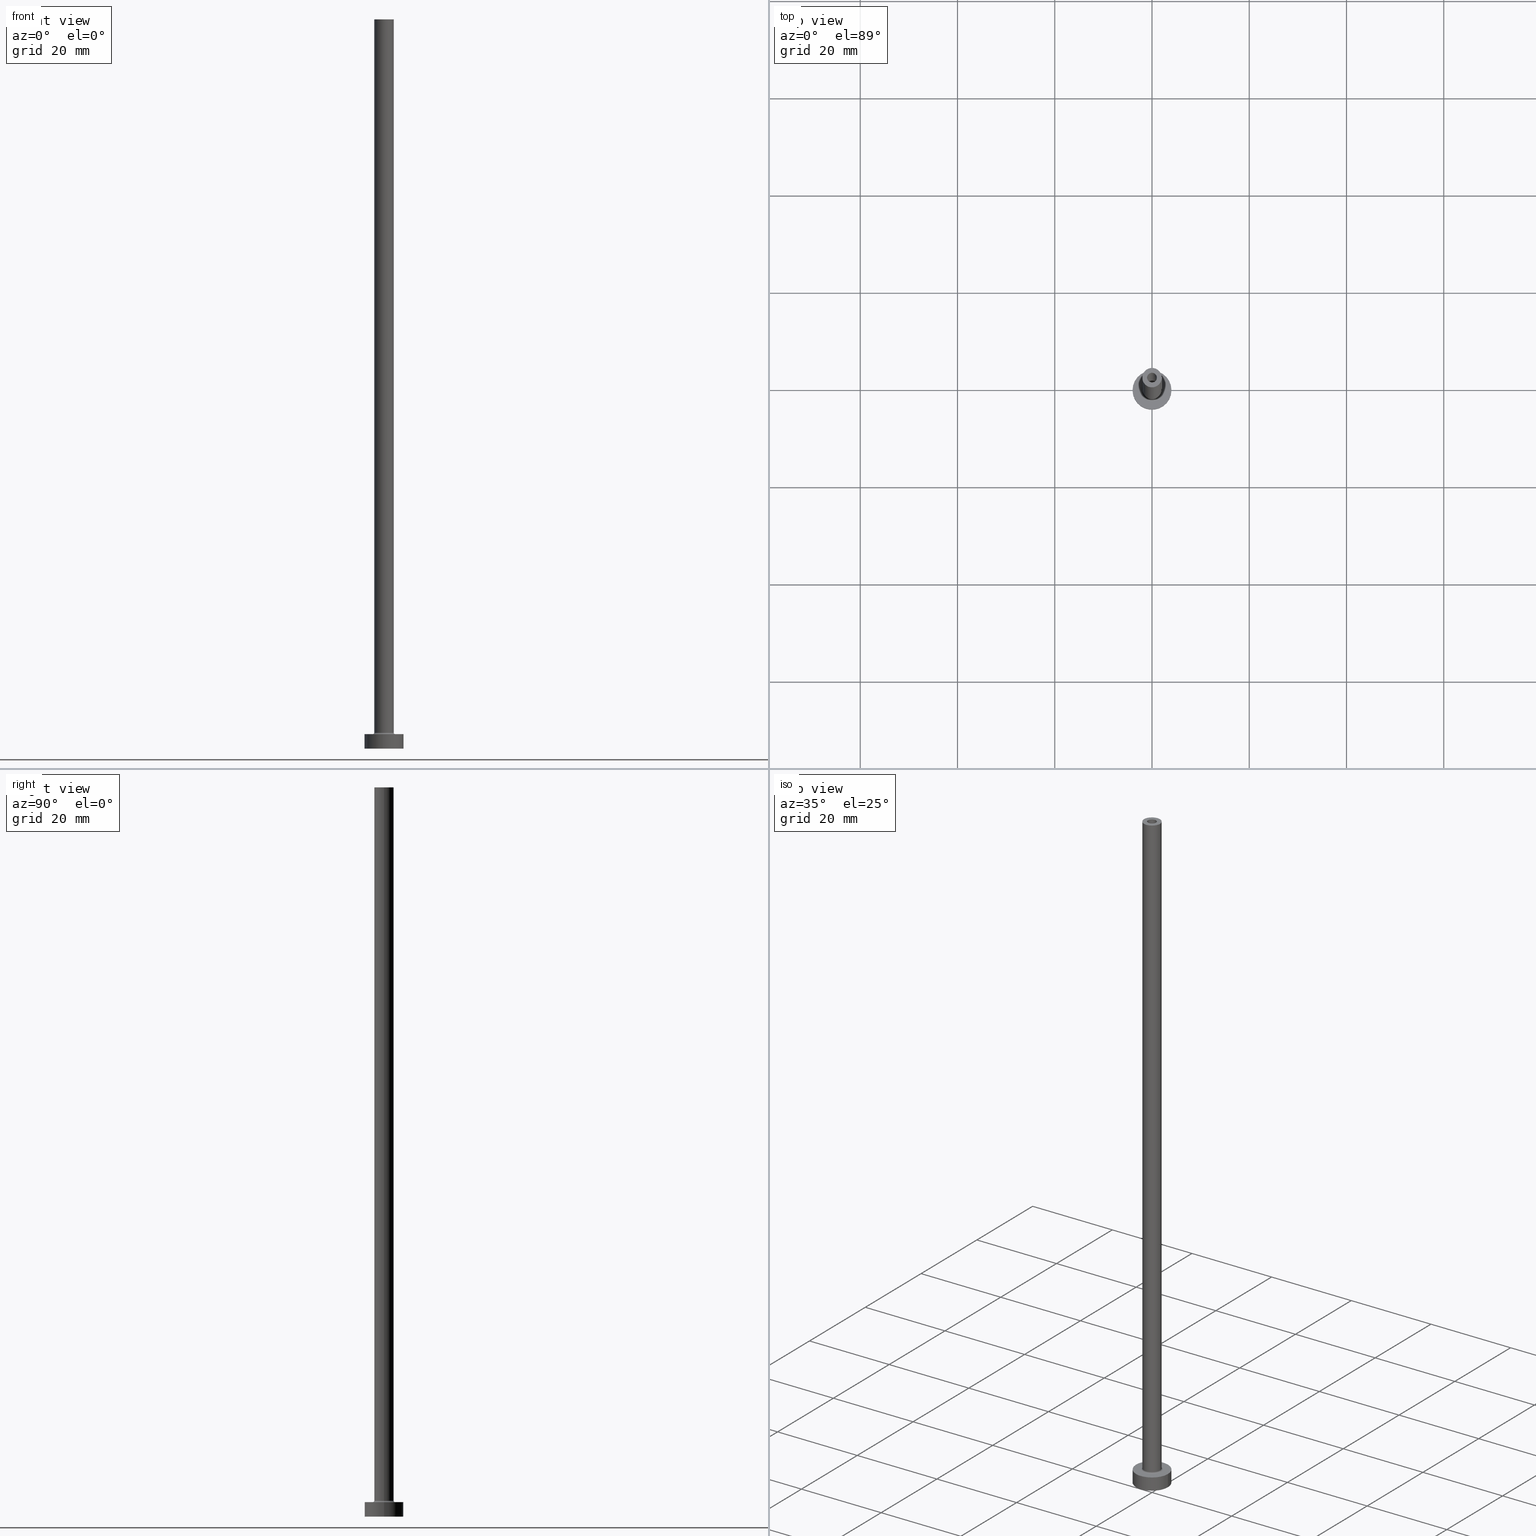
[diagram: canonical four-view strip — front | top / right | iso, engineering-drawing reading convention]
A machine part, canonical four-view strip (front | top / right | iso — engineering-drawing reading convention). The complete STEP part file that produces these views, byte-faithful:
ISO-10303-21;
HEADER;
FILE_DESCRIPTION (( 'STEP AP203' ),
    '1' );
FILE_NAME ('b69b.STEP',
    '2023-02-13T12:50:48',
    ( '' ),
    ( '' ),
    'SwSTEP 2.0',
    'SolidWorks 2019',
    '' );
FILE_SCHEMA (( 'CONFIG_CONTROL_DESIGN' ));
ENDSEC;

DATA;
#1 = ORIENTED_EDGE ( 'NONE', *, *, #355, .T. ) ;
#2 = VERTEX_POINT ( 'NONE', #311 ) ;
#3 = AXIS2_PLACEMENT_3D ( 'NONE', #230, #89, #235 ) ;
#4 = CC_DESIGN_APPROVAL ( #40, ( #170 ) ) ;
#5 = DIRECTION ( 'NONE',  ( 0.000000000000000000, 0.000000000000000000, 1.000000000000000000 ) ) ;
#6 = ORIENTED_EDGE ( 'NONE', *, *, #405, .T. ) ;
#7 = EDGE_CURVE ( 'NONE', #117, #353, #342, .T. ) ;
#8 = APPROVAL_STATUS ( 'not_yet_approved' ) ;
#9 = SHAPE_DEFINITION_REPRESENTATION ( #113, #159 ) ;
#10 = AXIS2_PLACEMENT_3D ( 'NONE', #76, #188, #14 ) ;
#11 = APPLICATION_PROTOCOL_DEFINITION ( 'international standard', 'config_control_design', 1994, #458 ) ;
#12 = COORDINATED_UNIVERSAL_TIME_OFFSET ( 1, 0, .AHEAD. ) ;
#13 = CIRCLE ( 'NONE', #359, 4.000000000000000000 ) ;
#14 = DIRECTION ( 'NONE',  ( 1.000000000000000000, 0.000000000000000000, 0.000000000000000000 ) ) ;
#15 = ADVANCED_FACE ( 'NONE', ( #376, #20 ), #100, .F. ) ;
#16 = CYLINDRICAL_SURFACE ( 'NONE', #206, 4.000000000000000000 ) ;
#17 = CARTESIAN_POINT ( 'NONE',  ( -4.000000000000000000, 0.000000000000000000, 0.000000000000000000 ) ) ;
#18 = FACE_OUTER_BOUND ( 'NONE', #168, .T. ) ;
#19 = DIRECTION ( 'NONE',  ( 1.000000000000000000, 0.000000000000000000, 0.000000000000000000 ) ) ;
#20 = FACE_OUTER_BOUND ( 'NONE', #277, .T. ) ;
#21 = CARTESIAN_POINT ( 'NONE',  ( 0.000000000000000000, 0.000000000000000000, 118.2526911934581051 ) ) ;
#22 = CC_DESIGN_DATE_AND_TIME_ASSIGNMENT ( #220, #368, ( #201 ) ) ;
#23 = CARTESIAN_POINT ( 'NONE',  ( 1.000000000000000000, 1.224646799147353207E-16, 150.0000000000000000 ) ) ;
#24 = DIRECTION ( 'NONE',  ( 0.000000000000000000, 0.000000000000000000, 1.000000000000000000 ) ) ;
#25 = FACE_OUTER_BOUND ( 'NONE', #412, .T. ) ;
#26 = FACE_OUTER_BOUND ( 'NONE', #267, .T. ) ;
#27 = DIRECTION ( 'NONE',  ( 0.000000000000000000, 0.000000000000000000, 1.000000000000000000 ) ) ;
#28 = DIRECTION ( 'NONE',  ( 1.000000000000000000, 0.000000000000000000, 0.000000000000000000 ) ) ;
#29 = VECTOR ( 'NONE', #341, 1000.000000000000000 ) ;
#30 = ORIENTED_EDGE ( 'NONE', *, *, #367, .T. ) ;
#31 = ORIENTED_EDGE ( 'NONE', *, *, #299, .T. ) ;
#32 = DIRECTION ( 'NONE',  ( -1.000000000000000000, 0.000000000000000000, 0.000000000000000000 ) ) ;
#33 = ORIENTED_EDGE ( 'NONE', *, *, #299, .F. ) ;
#34 = VECTOR ( 'NONE', #448, 1000.000000000000000 ) ;
#35 = LOCAL_TIME ( 13, 50, 48.00000000000000000, #435 ) ;
#36 = ORIENTED_EDGE ( 'NONE', *, *, #205, .F. ) ;
#37 = PERSON_AND_ORGANIZATION ( #460, #120 ) ;
#38 = EDGE_CURVE ( 'NONE', #203, #122, #234, .T. ) ;
#39 = EDGE_CURVE ( 'NONE', #2, #319, #441, .T. ) ;
#40 = APPROVAL ( #118, 'NEUR�EN�' ) ;
#41 = LINE ( 'NONE', #331, #34 ) ;
#42 = EDGE_CURVE ( 'NONE', #284, #338, #85, .T. ) ;
#43 = EDGE_CURVE ( 'NONE', #360, #167, #126, .T. ) ;
#44 = ORIENTED_EDGE ( 'NONE', *, *, #78, .F. ) ;
#45 = AXIS2_PLACEMENT_3D ( 'NONE', #241, #310, #47 ) ;
#46 = AXIS2_PLACEMENT_3D ( 'NONE', #339, #276, #96 ) ;
#47 = DIRECTION ( 'NONE',  ( 1.000000000000000000, 0.000000000000000000, 0.000000000000000000 ) ) ;
#48 = CARTESIAN_POINT ( 'NONE',  ( 0.000000000000000000, 0.000000000000000000, 3.000000000000000000 ) ) ;
#49 = ORIENTED_EDGE ( 'NONE', *, *, #271, .F. ) ;
#50 = EDGE_CURVE ( 'NONE', #353, #122, #425, .T. ) ;
#51 = DIRECTION ( 'NONE',  ( 0.000000000000000000, 0.000000000000000000, 1.000000000000000000 ) ) ;
#52 = ADVANCED_FACE ( 'NONE', ( #26 ), #414, .F. ) ;
#53 = DIRECTION ( 'NONE',  ( 0.000000000000000000, 0.000000000000000000, -1.000000000000000000 ) ) ;
#54 = CARTESIAN_POINT ( 'NONE',  ( 0.000000000000000000, 0.000000000000000000, 0.000000000000000000 ) ) ;
#55 = CARTESIAN_POINT ( 'NONE',  ( -1.000000000000000000, 0.000000000000000000, 114.9999999999999858 ) ) ;
#56 = EDGE_CURVE ( 'NONE', #117, #203, #397, .T. ) ;
#57 = DIRECTION ( 'NONE',  ( 1.000000000000000000, 0.000000000000000000, 0.000000000000000000 ) ) ;
#58 = DIRECTION ( 'NONE',  ( -0.000000000000000000, -0.000000000000000000, -1.000000000000000000 ) ) ;
#59 =( LENGTH_UNIT ( ) NAMED_UNIT ( * ) SI_UNIT ( .MILLI., .METRE. ) );
#60 = AXIS2_PLACEMENT_3D ( 'NONE', #238, #447, #95 ) ;
#61 = AXIS2_PLACEMENT_3D ( 'NONE', #356, #177, #207 ) ;
#62 = CARTESIAN_POINT ( 'NONE',  ( 1.149999999999999911, 1.408343819019456028E-16, 0.000000000000000000 ) ) ;
#63 = EDGE_LOOP ( 'NONE', ( #36, #152, #6, #172 ) ) ;
#64 = ORIENTED_EDGE ( 'NONE', *, *, #349, .T. ) ;
#65 = DIRECTION ( 'NONE',  ( 1.000000000000000000, 0.000000000000000000, 0.000000000000000000 ) ) ;
#66 = ORIENTED_EDGE ( 'NONE', *, *, #42, .T. ) ;
#67 = CARTESIAN_POINT ( 'NONE',  ( 0.000000000000000000, 0.000000000000000000, 0.000000000000000000 ) ) ;
#68 = AXIS2_PLACEMENT_3D ( 'NONE', #165, #413, #307 ) ;
#69 = CIRCLE ( 'NONE', #10, 1.149999999999999911 ) ;
#70 = CARTESIAN_POINT ( 'NONE',  ( -1.149999999999999911, 0.000000000000000000, 0.000000000000000000 ) ) ;
#71 = VERTEX_POINT ( 'NONE', #449 ) ;
#72 = DATE_AND_TIME ( #79, #35 ) ;
#73 = ADVANCED_FACE ( 'NONE', ( #345, #18 ), #334, .T. ) ;
#74 = SECURITY_CLASSIFICATION_LEVEL ( 'unclassified' ) ;
#75 = CARTESIAN_POINT ( 'NONE',  ( 0.000000000000000000, 0.000000000000000000, 3.000000000000000000 ) ) ;
#76 = CARTESIAN_POINT ( 'NONE',  ( 0.000000000000000000, 0.000000000000000000, 0.000000000000000000 ) ) ;
#77 = ORIENTED_EDGE ( 'NONE', *, *, #78, .T. ) ;
#78 = EDGE_CURVE ( 'NONE', #321, #109, #255, .T. ) ;
#79 = CALENDAR_DATE ( 2023, 13, 2 ) ;
#80 = EDGE_CURVE ( 'NONE', #393, #391, #98, .T. ) ;
#81 = PERSON_AND_ORGANIZATION_ROLE ( 'design_owner' ) ;
#82 = EDGE_LOOP ( 'NONE', ( #44, #192 ) ) ;
#83 = CC_DESIGN_PERSON_AND_ORGANIZATION_ASSIGNMENT ( #263, #187, ( #170 ) ) ;
#84 = DIRECTION ( 'NONE',  ( 1.000000000000000000, 0.000000000000000000, -0.000000000000000000 ) ) ;
#85 = CIRCLE ( 'NONE', #162, 2.000000000000000000 ) ;
#86 = AXIS2_PLACEMENT_3D ( 'NONE', #181, #58, #258 ) ;
#87 = APPROVAL_PERSON_ORGANIZATION ( #330, #40, #440 ) ;
#88 = DIRECTION ( 'NONE',  ( 0.000000000000000000, 0.000000000000000000, 1.000000000000000000 ) ) ;
#89 = DIRECTION ( 'NONE',  ( 0.000000000000000000, 0.000000000000000000, 1.000000000000000000 ) ) ;
#90 = DIRECTION ( 'NONE',  ( 1.000000000000000000, 0.000000000000000000, 0.000000000000000000 ) ) ;
#91 = DIRECTION ( 'NONE',  ( 0.000000000000000000, 0.000000000000000000, -1.000000000000000000 ) ) ;
#92 = CARTESIAN_POINT ( 'NONE',  ( 0.000000000000000000, 0.000000000000000000, 114.9999999999999858 ) ) ;
#93 = CYLINDRICAL_SURFACE ( 'NONE', #312, 1.000000000000000000 ) ;
#94 = DIRECTION ( 'NONE',  ( 0.000000000000000000, 0.000000000000000000, -1.000000000000000000 ) ) ;
#95 = DIRECTION ( 'NONE',  ( 1.000000000000000000, 0.000000000000000000, 0.000000000000000000 ) ) ;
#96 = DIRECTION ( 'NONE',  ( 1.000000000000000000, 0.000000000000000000, 0.000000000000000000 ) ) ;
#97 = DIRECTION ( 'NONE',  ( -0.000000000000000000, -0.000000000000000000, -1.000000000000000000 ) ) ;
#98 = CIRCLE ( 'NONE', #294, 2.000000000000000000 ) ;
#99 = DIRECTION ( 'NONE',  ( 1.000000000000000000, 0.000000000000000000, 0.000000000000000000 ) ) ;
#100 = PLANE ( 'NONE',  #365 ) ;
#101 = DIRECTION ( 'NONE',  ( 1.000000000000000000, 0.000000000000000000, 0.000000000000000000 ) ) ;
#102 = EDGE_LOOP ( 'NONE', ( #270, #137 ) ) ;
#103 = EDGE_LOOP ( 'NONE', ( #33, #228 ) ) ;
#104 = CARTESIAN_POINT ( 'NONE',  ( 0.000000000000000000, 0.000000000000000000, 150.0000000000000000 ) ) ;
#105 = AXIS2_PLACEMENT_3D ( 'NONE', #402, #416, #370 ) ;
#106 = AXIS2_PLACEMENT_3D ( 'NONE', #245, #315, #253 ) ;
#107 = DIRECTION ( 'NONE',  ( 0.000000000000000000, 0.000000000000000000, 1.000000000000000000 ) ) ;
#108 = DIRECTION ( 'NONE',  ( 1.000000000000000000, 0.000000000000000000, 0.000000000000000000 ) ) ;
#109 = VERTEX_POINT ( 'NONE', #386 ) ;
#110 = ORIENTED_EDGE ( 'NONE', *, *, #38, .T. ) ;
#111 = FACE_BOUND ( 'NONE', #158, .T. ) ;
#112 = ORIENTED_EDGE ( 'NONE', *, *, #50, .F. ) ;
#113 = PRODUCT_DEFINITION_SHAPE ( 'NONE', 'NONE',  #201 ) ;
#114 = CC_DESIGN_DATE_AND_TIME_ASSIGNMENT ( #364, #180, ( #170 ) ) ;
#115 = APPROVAL_ROLE ( '' ) ;
#116 = APPROVAL_DATE_TIME ( #72, #433 ) ;
#117 = VERTEX_POINT ( 'NONE', #377 ) ;
#118 = APPROVAL_STATUS ( 'not_yet_approved' ) ;
#119 = CYLINDRICAL_SURFACE ( 'NONE', #130, 4.000000000000000000 ) ;
#120 = ORGANIZATION ( 'NEUR�EN�', 'NEUR�EN�', '' ) ;
#121 = COORDINATED_UNIVERSAL_TIME_OFFSET ( 1, 0, .AHEAD. ) ;
#122 = VERTEX_POINT ( 'NONE', #55 ) ;
#123 = EDGE_CURVE ( 'NONE', #71, #360, #149, .T. ) ;
#124 = ADVANCED_FACE ( 'NONE', ( #136 ), #283, .T. ) ;
#125 = CARTESIAN_POINT ( 'NONE',  ( 0.000000000000000000, 0.000000000000000000, 0.000000000000000000 ) ) ;
#126 = LINE ( 'NONE', #275, #264 ) ;
#127 = AXIS2_PLACEMENT_3D ( 'NONE', #146, #5, #65 ) ;
#128 = VECTOR ( 'NONE', #153, 1000.000000000000000 ) ;
#129 = CYLINDRICAL_SURFACE ( 'NONE', #374, 1.149999999999999911 ) ;
#130 = AXIS2_PLACEMENT_3D ( 'NONE', #399, #227, #332 ) ;
#131 = CARTESIAN_POINT ( 'NONE',  ( 4.000000000000000000, 4.898587196589412829E-16, 0.000000000000000000 ) ) ;
#132 = DIRECTION ( 'NONE',  ( -1.000000000000000000, 0.000000000000000000, 0.000000000000000000 ) ) ;
#133 = DIRECTION ( 'NONE',  ( 0.000000000000000000, 0.000000000000000000, 1.000000000000000000 ) ) ;
#134 = PLANE ( 'NONE',  #455 ) ;
#135 = CARTESIAN_POINT ( 'NONE',  ( 0.000000000000000000, 0.000000000000000000, 118.2526911934581051 ) ) ;
#136 = FACE_OUTER_BOUND ( 'NONE', #63, .T. ) ;
#137 = ORIENTED_EDGE ( 'NONE', *, *, #56, .F. ) ;
#138 = MECHANICAL_CONTEXT ( 'NONE', #389, 'mechanical' ) ;
#139 = ORIENTED_EDGE ( 'NONE', *, *, #80, .F. ) ;
#140 = EDGE_CURVE ( 'NONE', #71, #171, #196, .T. ) ;
#141 = DIRECTION ( 'NONE',  ( 1.000000000000000000, 0.000000000000000000, 0.000000000000000000 ) ) ;
#142 = FACE_OUTER_BOUND ( 'NONE', #344, .T. ) ;
#143 = EDGE_LOOP ( 'NONE', ( #145, #438 ) ) ;
#144 = AXIS2_PLACEMENT_3D ( 'NONE', #135, #91, #420 ) ;
#145 = ORIENTED_EDGE ( 'NONE', *, *, #39, .T. ) ;
#146 = CARTESIAN_POINT ( 'NONE',  ( 0.000000000000000000, 0.000000000000000000, 3.299999999999997158 ) ) ;
#147 = EDGE_LOOP ( 'NONE', ( #252, #262, #421, #254 ) ) ;
#148 = ORIENTED_EDGE ( 'NONE', *, *, #251, .F. ) ;
#149 = CIRCLE ( 'NONE', #432, 4.000000000000000000 ) ;
#150 = DESIGN_CONTEXT ( 'detailed design', #458, 'design' ) ;
#151 = CIRCLE ( 'NONE', #256, 2.000000000000000000 ) ;
#152 = ORIENTED_EDGE ( 'NONE', *, *, #367, .F. ) ;
#153 = DIRECTION ( 'NONE',  ( 0.000000000000000000, 0.000000000000000000, -1.000000000000000000 ) ) ;
#154 = APPROVAL_ROLE ( '' ) ;
#155 = PERSON_AND_ORGANIZATION ( #460, #120 ) ;
#156 = AXIS2_PLACEMENT_3D ( 'NONE', #430, #384, #141 ) ;
#157 = PERSON_AND_ORGANIZATION_ROLE ( 'design_supplier' ) ;
#158 = EDGE_LOOP ( 'NONE', ( #426, #297 ) ) ;
#159 = ADVANCED_BREP_SHAPE_REPRESENTATION ( 'b69b', ( #211, #313 ), #457 ) ;
#160 = CARTESIAN_POINT ( 'NONE',  ( 0.000000000000000000, 0.000000000000000000, 114.9999999999999858 ) ) ;
#161 = CARTESIAN_POINT ( 'NONE',  ( 0.000000000000000000, 0.000000000000000000, 150.0000000000000000 ) ) ;
#162 = AXIS2_PLACEMENT_3D ( 'NONE', #347, #88, #99 ) ;
#163 = CARTESIAN_POINT ( 'NONE',  ( 0.000000000000000000, 0.000000000000000000, 3.000000000000000000 ) ) ;
#164 = CC_DESIGN_APPROVAL ( #433, ( #201 ) ) ;
#165 = CARTESIAN_POINT ( 'NONE',  ( -2.299999999999999822, 2.816687638038912056E-16, 3.299999999999997158 ) ) ;
#166 = CARTESIAN_POINT ( 'NONE',  ( -1.000000000000000000, 0.000000000000000000, 150.0000000000000000 ) ) ;
#167 = VERTEX_POINT ( 'NONE', #17 ) ;
#168 = EDGE_LOOP ( 'NONE', ( #30, #400 ) ) ;
#169 = DIRECTION ( 'NONE',  ( 1.000000000000000000, 0.000000000000000000, 0.000000000000000000 ) ) ;
#170 = SECURITY_CLASSIFICATION ( '', '', #74 ) ;
#171 = VERTEX_POINT ( 'NONE', #131 ) ;
#172 = ORIENTED_EDGE ( 'NONE', *, *, #325, .T. ) ;
#173 = DIRECTION ( 'NONE',  ( 1.000000000000000000, 0.000000000000000000, 0.000000000000000000 ) ) ;
#174 = CARTESIAN_POINT ( 'NONE',  ( -1.149999999999999911, 0.000000000000000000, 114.9999999999999858 ) ) ;
#175 = ORIENTED_EDGE ( 'NONE', *, *, #193, .T. ) ;
#176 = CLOSED_SHELL ( 'NONE', ( #199, #218, #394, #335, #362, #204, #304, #15, #124, #73, #281, #52, #340, #269 ) ) ;
#177 = DIRECTION ( 'NONE',  ( 0.000000000000000000, 0.000000000000000000, 1.000000000000000000 ) ) ;
#178 = ORIENTED_EDGE ( 'NONE', *, *, #422, .F. ) ;
#179 = DIRECTION ( 'NONE',  ( 0.000000000000000000, 0.000000000000000000, -1.000000000000000000 ) ) ;
#180 = DATE_TIME_ROLE ( 'classification_date' ) ;
#181 = CARTESIAN_POINT ( 'NONE',  ( 0.000000000000000000, 0.000000000000000000, 150.0000000000000000 ) ) ;
#182 = AXIS2_PLACEMENT_3D ( 'NONE', #214, #358, #296 ) ;
#183 = APPROVAL_STATUS ( 'not_yet_approved' ) ;
#184 = LOCAL_TIME ( 13, 50, 48.00000000000000000, #268 ) ;
#185 = ORIENTED_EDGE ( 'NONE', *, *, #369, .F. ) ;
#186 = CARTESIAN_POINT ( 'NONE',  ( -4.000000000000000000, 0.000000000000000000, 3.000000000000000000 ) ) ;
#187 = PERSON_AND_ORGANIZATION_ROLE ( 'classification_officer' ) ;
#188 = DIRECTION ( 'NONE',  ( -0.000000000000000000, -0.000000000000000000, -1.000000000000000000 ) ) ;
#189 = ORIENTED_EDGE ( 'NONE', *, *, #349, .F. ) ;
#190 = PERSON_AND_ORGANIZATION ( #460, #120 ) ;
#191 = AXIS2_PLACEMENT_3D ( 'NONE', #67, #97, #90 ) ;
#192 = ORIENTED_EDGE ( 'NONE', *, *, #223, .F. ) ;
#193 = EDGE_CURVE ( 'NONE', #338, #319, #215, .T. ) ;
#194 = CC_DESIGN_APPROVAL ( #401, ( #381 ) ) ;
#195 = DIRECTION ( 'NONE',  ( 0.000000000000000000, 0.000000000000000000, -1.000000000000000000 ) ) ;
#196 = LINE ( 'NONE', #373, #29 ) ;
#197 = VECTOR ( 'NONE', #202, 1000.000000000000000 ) ;
#198 = DIRECTION ( 'NONE',  ( -1.000000000000000000, 0.000000000000000000, 0.000000000000000000 ) ) ;
#199 = ADVANCED_FACE ( 'NONE', ( #451 ), #93, .F. ) ;
#200 = DIRECTION ( 'NONE',  ( 0.000000000000000000, 0.000000000000000000, 1.000000000000000000 ) ) ;
#201 = PRODUCT_DEFINITION ( 'NEZN�M�', '', #381, #150 ) ;
#202 = DIRECTION ( 'NONE',  ( 0.000000000000000000, 0.000000000000000000, -1.000000000000000000 ) ) ;
#203 = VERTEX_POINT ( 'NONE', #309 ) ;
#204 = ADVANCED_FACE ( 'NONE', ( #142 ), #16, .T. ) ;
#205 = EDGE_CURVE ( 'NONE', #393, #284, #41, .T. ) ;
#206 = AXIS2_PLACEMENT_3D ( 'NONE', #75, #446, #224 ) ;
#207 = DIRECTION ( 'NONE',  ( 1.000000000000000000, 0.000000000000000000, 0.000000000000000000 ) ) ;
#208 = EDGE_LOOP ( 'NONE', ( #77, #452, #1, #189 ) ) ;
#209 = DIRECTION ( 'NONE',  ( 0.000000000000000000, 0.000000000000000000, -1.000000000000000000 ) ) ;
#210 = ORIENTED_EDGE ( 'NONE', *, *, #333, .F. ) ;
#211 = MANIFOLD_SOLID_BREP ( 'Odebrat vysunut�m4', #176 ) ;
#212 = FACE_OUTER_BOUND ( 'NONE', #434, .T. ) ;
#213 = ORIENTED_EDGE ( 'NONE', *, *, #43, .F. ) ;
#214 = CARTESIAN_POINT ( 'NONE',  ( 2.299999999999999822, 0.000000000000000000, 3.299999999999997158 ) ) ;
#215 = CIRCLE ( 'NONE', #68, 0.2999999999999999334 ) ;
#216 = ORIENTED_EDGE ( 'NONE', *, *, #325, .F. ) ;
#217 = CARTESIAN_POINT ( 'NONE',  ( 0.000000000000000000, 0.000000000000000000, 0.000000000000000000 ) ) ;
#218 = ADVANCED_FACE ( 'NONE', ( #407 ), #129, .F. ) ;
#219 = CC_DESIGN_PERSON_AND_ORGANIZATION_ASSIGNMENT ( #155, #157, ( #381 ) ) ;
#220 = DATE_AND_TIME ( #260, #442 ) ;
#221 = ORIENTED_EDGE ( 'NONE', *, *, #140, .T. ) ;
#222 = CALENDAR_DATE ( 2023, 13, 2 ) ;
#223 = EDGE_CURVE ( 'NONE', #109, #321, #301, .T. ) ;
#224 = DIRECTION ( 'NONE',  ( -1.000000000000000000, 0.000000000000000000, 0.000000000000000000 ) ) ;
#225 = PERSON_AND_ORGANIZATION ( #460, #120 ) ;
#226 = PERSON_AND_ORGANIZATION_ROLE ( 'creator' ) ;
#227 = DIRECTION ( 'NONE',  ( -0.000000000000000000, -0.000000000000000000, -1.000000000000000000 ) ) ;
#228 = ORIENTED_EDGE ( 'NONE', *, *, #355, .F. ) ;
#229 = ORIENTED_EDGE ( 'NONE', *, *, #259, .T. ) ;
#230 = CARTESIAN_POINT ( 'NONE',  ( 0.000000000000000000, 0.000000000000000000, 114.9999999999999858 ) ) ;
#231 = AXIS2_PLACEMENT_3D ( 'NONE', #237, #51, #19 ) ;
#232 = FACE_OUTER_BOUND ( 'NONE', #302, .T. ) ;
#233 = LOCAL_TIME ( 13, 50, 48.00000000000000000, #444 ) ;
#234 = LINE ( 'NONE', #166, #197 ) ;
#235 = DIRECTION ( 'NONE',  ( 1.000000000000000000, 0.000000000000000000, 0.000000000000000000 ) ) ;
#236 = CARTESIAN_POINT ( 'NONE',  ( -2.000000000000000000, 0.000000000000000000, 150.0000000000000000 ) ) ;
#237 = CARTESIAN_POINT ( 'NONE',  ( 0.000000000000000000, 0.000000000000000000, 114.9999999999999858 ) ) ;
#238 = CARTESIAN_POINT ( 'NONE',  ( 0.000000000000000000, 0.000000000000000000, 150.0000000000000000 ) ) ;
#239 = DIRECTION ( 'NONE',  ( 0.000000000000000000, 0.000000000000000000, 1.000000000000000000 ) ) ;
#240 = CARTESIAN_POINT ( 'NONE',  ( 0.000000000000000000, 0.000000000000000000, 150.0000000000000000 ) ) ;
#241 = CARTESIAN_POINT ( 'NONE',  ( 0.000000000000000000, 0.000000000000000000, 3.000000000000000000 ) ) ;
#242 = LINE ( 'NONE', #415, #392 ) ;
#243 = LOCAL_TIME ( 13, 50, 48.00000000000000000, #12 ) ;
#244 = PRODUCT ( 'b69b', 'b69b', '', ( #138 ) ) ;
#245 = CARTESIAN_POINT ( 'NONE',  ( 0.000000000000000000, 0.000000000000000000, 3.000000000000000000 ) ) ;
#246 = LINE ( 'NONE', #395, #128 ) ;
#247 = LINE ( 'NONE', #288, #351 ) ;
#248 = DIRECTION ( 'NONE',  ( 0.000000000000000000, 0.000000000000000000, 1.000000000000000000 ) ) ;
#249 = ORIENTED_EDGE ( 'NONE', *, *, #405, .F. ) ;
#250 = CARTESIAN_POINT ( 'NONE',  ( 0.000000000000000000, 0.000000000000000000, 114.9999999999999858 ) ) ;
#251 = EDGE_CURVE ( 'NONE', #360, #71, #13, .T. ) ;
#252 = ORIENTED_EDGE ( 'NONE', *, *, #193, .F. ) ;
#253 = DIRECTION ( 'NONE',  ( 1.000000000000000000, 0.000000000000000000, 0.000000000000000000 ) ) ;
#254 = ORIENTED_EDGE ( 'NONE', *, *, #437, .F. ) ;
#255 = CIRCLE ( 'NONE', #3, 1.149999999999999911 ) ;
#256 = AXIS2_PLACEMENT_3D ( 'NONE', #336, #291, #57 ) ;
#257 = ORIENTED_EDGE ( 'NONE', *, *, #38, .F. ) ;
#258 = DIRECTION ( 'NONE',  ( -1.000000000000000000, 0.000000000000000000, 0.000000000000000000 ) ) ;
#259 = EDGE_CURVE ( 'NONE', #203, #117, #366, .T. ) ;
#260 = CALENDAR_DATE ( 2023, 13, 2 ) ;
#261 = FACE_OUTER_BOUND ( 'NONE', #361, .T. ) ;
#262 = ORIENTED_EDGE ( 'NONE', *, *, #42, .F. ) ;
#263 = PERSON_AND_ORGANIZATION ( #460, #120 ) ;
#264 = VECTOR ( 'NONE', #453, 1000.000000000000000 ) ;
#265 = PERSON_AND_ORGANIZATION ( #460, #120 ) ;
#266 = APPROVAL_PERSON_ORGANIZATION ( #37, #433, #115 ) ;
#267 = EDGE_LOOP ( 'NONE', ( #49, #406, #64, #31 ) ) ;
#268 = COORDINATED_UNIVERSAL_TIME_OFFSET ( 1, 0, .AHEAD. ) ;
#269 = ADVANCED_FACE ( 'NONE', ( #212 ), #382, .F. ) ;
#270 = ORIENTED_EDGE ( 'NONE', *, *, #259, .F. ) ;
#271 = EDGE_CURVE ( 'NONE', #109, #429, #247, .T. ) ;
#272 = CIRCLE ( 'NONE', #127, 2.000000000000000000 ) ;
#273 = TOROIDAL_SURFACE ( 'NONE', #46, 2.299999999999999822, 0.2999999999999999889 ) ;
#274 = ORIENTED_EDGE ( 'NONE', *, *, #123, .T. ) ;
#275 = CARTESIAN_POINT ( 'NONE',  ( -4.000000000000000000, 0.000000000000000000, 3.000000000000000000 ) ) ;
#276 = DIRECTION ( 'NONE',  ( 0.000000000000000000, 0.000000000000000000, 1.000000000000000000 ) ) ;
#277 = EDGE_LOOP ( 'NONE', ( #298, #185 ) ) ;
#278 = TOROIDAL_SURFACE ( 'NONE', #408, 2.299999999999999822, 0.2999999999999999889 ) ;
#279 = DIRECTION ( 'NONE',  ( 0.000000000000000000, 0.000000000000000000, 1.000000000000000000 ) ) ;
#280 = ORIENTED_EDGE ( 'NONE', *, *, #39, .F. ) ;
#281 = ADVANCED_FACE ( 'NONE', ( #357 ), #278, .F. ) ;
#282 = ORIENTED_EDGE ( 'NONE', *, *, #7, .T. ) ;
#283 = CYLINDRICAL_SURFACE ( 'NONE', #105, 2.000000000000000000 ) ;
#284 = VERTEX_POINT ( 'NONE', #388 ) ;
#285 = ORIENTED_EDGE ( 'NONE', *, *, #251, .T. ) ;
#286 =( NAMED_UNIT ( * ) SI_UNIT ( $, .STERADIAN. ) SOLID_ANGLE_UNIT ( ) );
#287 = ORIENTED_EDGE ( 'NONE', *, *, #431, .T. ) ;
#288 = CARTESIAN_POINT ( 'NONE',  ( 1.149999999999999911, 1.408343819019456028E-16, 118.2526911934581051 ) ) ;
#289 = VERTEX_POINT ( 'NONE', #70 ) ;
#290 = CC_DESIGN_PERSON_AND_ORGANIZATION_ASSIGNMENT ( #323, #81, ( #244 ) ) ;
#291 = DIRECTION ( 'NONE',  ( 0.000000000000000000, 0.000000000000000000, 1.000000000000000000 ) ) ;
#292 = ORIENTED_EDGE ( 'NONE', *, *, #205, .T. ) ;
#293 = PERSON_AND_ORGANIZATION_ROLE ( 'creator' ) ;
#294 = AXIS2_PLACEMENT_3D ( 'NONE', #161, #424, #379 ) ;
#295 = CIRCLE ( 'NONE', #61, 4.000000000000000000 ) ;
#296 = DIRECTION ( 'NONE',  ( 0.000000000000000000, 0.000000000000000000, -1.000000000000000000 ) ) ;
#297 = ORIENTED_EDGE ( 'NONE', *, *, #50, .T. ) ;
#298 = ORIENTED_EDGE ( 'NONE', *, *, #431, .F. ) ;
#299 = EDGE_CURVE ( 'NONE', #289, #429, #390, .T. ) ;
#300 = ORIENTED_EDGE ( 'NONE', *, *, #56, .T. ) ;
#301 = CIRCLE ( 'NONE', #231, 1.149999999999999911 ) ;
#302 = EDGE_LOOP ( 'NONE', ( #216, #175, #280, #210 ) ) ;
#303 = DIRECTION ( 'NONE',  ( 0.000000000000000000, 0.000000000000000000, 1.000000000000000000 ) ) ;
#304 = ADVANCED_FACE ( 'NONE', ( #454, #25 ), #134, .T. ) ;
#305 = AXIS2_PLACEMENT_3D ( 'NONE', #250, #107, #324 ) ;
#306 = AXIS2_PLACEMENT_3D ( 'NONE', #125, #200, #308 ) ;
#307 = DIRECTION ( 'NONE',  ( -1.000000000000000000, 1.224646799147353207E-16, 0.000000000000000000 ) ) ;
#308 = DIRECTION ( 'NONE',  ( 1.000000000000000000, 0.000000000000000000, 0.000000000000000000 ) ) ;
#309 = CARTESIAN_POINT ( 'NONE',  ( -1.000000000000000000, 0.000000000000000000, 150.0000000000000000 ) ) ;
#310 = DIRECTION ( 'NONE',  ( -0.000000000000000000, -0.000000000000000000, -1.000000000000000000 ) ) ;
#311 = CARTESIAN_POINT ( 'NONE',  ( 2.299999999999999822, 0.000000000000000000, 2.999999999999998668 ) ) ;
#312 = AXIS2_PLACEMENT_3D ( 'NONE', #240, #53, #198 ) ;
#313 = AXIS2_PLACEMENT_3D ( 'NONE', #217, #248, #28 ) ;
#314 = FACE_OUTER_BOUND ( 'NONE', #82, .T. ) ;
#315 = DIRECTION ( 'NONE',  ( -0.000000000000000000, -0.000000000000000000, -1.000000000000000000 ) ) ;
#316 = EDGE_LOOP ( 'NONE', ( #229, #282, #178, #257 ) ) ;
#317 = EDGE_LOOP ( 'NONE', ( #337, #221, #363, #213 ) ) ;
#318 = ORIENTED_EDGE ( 'NONE', *, *, #140, .F. ) ;
#319 = VERTEX_POINT ( 'NONE', #383 ) ;
#320 = CIRCLE ( 'NONE', #352, 1.000000000000000000 ) ;
#321 = VERTEX_POINT ( 'NONE', #174 ) ;
#322 = CC_DESIGN_PERSON_AND_ORGANIZATION_ASSIGNMENT ( #190, #293, ( #381 ) ) ;
#323 = PERSON_AND_ORGANIZATION ( #460, #120 ) ;
#324 = DIRECTION ( 'NONE',  ( 1.000000000000000000, 0.000000000000000000, -0.000000000000000000 ) ) ;
#325 = EDGE_CURVE ( 'NONE', #338, #284, #272, .T. ) ;
#326 = UNCERTAINTY_MEASURE_WITH_UNIT (LENGTH_MEASURE( 1.000000000000000082E-05 ), #59, 'distance_accuracy_value', 'NONE');
#327 = DATE_AND_TIME ( #404, #184 ) ;
#328 = AXIS2_PLACEMENT_3D ( 'NONE', #411, #24, #84 ) ;
#329 = FACE_OUTER_BOUND ( 'NONE', #317, .T. ) ;
#330 = PERSON_AND_ORGANIZATION ( #460, #120 ) ;
#331 = CARTESIAN_POINT ( 'NONE',  ( 2.000000000000000000, 2.449293598294706414E-16, 150.0000000000000000 ) ) ;
#332 = DIRECTION ( 'NONE',  ( -1.000000000000000000, 0.000000000000000000, 0.000000000000000000 ) ) ;
#333 = EDGE_CURVE ( 'NONE', #284, #2, #380, .T. ) ;
#334 = PLANE ( 'NONE',  #328 ) ;
#335 = ADVANCED_FACE ( 'NONE', ( #261 ), #443, .T. ) ;
#336 = CARTESIAN_POINT ( 'NONE',  ( 0.000000000000000000, 0.000000000000000000, 150.0000000000000000 ) ) ;
#337 = ORIENTED_EDGE ( 'NONE', *, *, #123, .F. ) ;
#338 = VERTEX_POINT ( 'NONE', #385 ) ;
#339 = CARTESIAN_POINT ( 'NONE',  ( 0.000000000000000000, 0.000000000000000000, 3.299999999999997158 ) ) ;
#340 = ADVANCED_FACE ( 'NONE', ( #111, #314 ), #423, .F. ) ;
#341 = DIRECTION ( 'NONE',  ( -0.000000000000000000, -0.000000000000000000, -1.000000000000000000 ) ) ;
#342 = LINE ( 'NONE', #23, #343 ) ;
#343 = VECTOR ( 'NONE', #94, 1000.000000000000000 ) ;
#344 = EDGE_LOOP ( 'NONE', ( #318, #148, #461, #287 ) ) ;
#345 = FACE_BOUND ( 'NONE', #102, .T. ) ;
#346 = DIRECTION ( 'NONE',  ( -0.000000000000000000, -0.000000000000000000, -1.000000000000000000 ) ) ;
#347 = CARTESIAN_POINT ( 'NONE',  ( 0.000000000000000000, 0.000000000000000000, 3.299999999999997158 ) ) ;
#348 = CARTESIAN_POINT ( 'NONE',  ( 0.000000000000000000, 0.000000000000000000, 3.000000000000000000 ) ) ;
#349 = EDGE_CURVE ( 'NONE', #321, #289, #246, .T. ) ;
#350 = CC_DESIGN_PERSON_AND_ORGANIZATION_ASSIGNMENT ( #225, #226, ( #201 ) ) ;
#351 = VECTOR ( 'NONE', #209, 1000.000000000000000 ) ;
#352 = AXIS2_PLACEMENT_3D ( 'NONE', #92, #239, #173 ) ;
#353 = VERTEX_POINT ( 'NONE', #436 ) ;
#354 = DIRECTION ( 'NONE',  ( 0.000000000000000000, 0.000000000000000000, 1.000000000000000000 ) ) ;
#355 = EDGE_CURVE ( 'NONE', #429, #289, #69, .T. ) ;
#356 = CARTESIAN_POINT ( 'NONE',  ( 0.000000000000000000, 0.000000000000000000, 0.000000000000000000 ) ) ;
#357 = FACE_OUTER_BOUND ( 'NONE', #147, .T. ) ;
#358 = DIRECTION ( 'NONE',  ( 0.000000000000000000, -1.000000000000000000, 0.000000000000000000 ) ) ;
#359 = AXIS2_PLACEMENT_3D ( 'NONE', #163, #354, #101 ) ;
#360 = VERTEX_POINT ( 'NONE', #186 ) ;
#361 = EDGE_LOOP ( 'NONE', ( #139, #292, #66, #249 ) ) ;
#362 = ADVANCED_FACE ( 'NONE', ( #329 ), #119, .T. ) ;
#363 = ORIENTED_EDGE ( 'NONE', *, *, #369, .T. ) ;
#364 = DATE_AND_TIME ( #222, #233 ) ;
#365 = AXIS2_PLACEMENT_3D ( 'NONE', #54, #133, #410 ) ;
#366 = CIRCLE ( 'NONE', #156, 1.000000000000000000 ) ;
#367 = EDGE_CURVE ( 'NONE', #391, #393, #151, .T. ) ;
#368 = DATE_TIME_ROLE ( 'creation_date' ) ;
#369 = EDGE_CURVE ( 'NONE', #171, #167, #418, .T. ) ;
#370 = DIRECTION ( 'NONE',  ( -1.000000000000000000, 0.000000000000000000, 0.000000000000000000 ) ) ;
#371 = AXIS2_PLACEMENT_3D ( 'NONE', #160, #303, #456 ) ;
#372 = APPROVAL_PERSON_ORGANIZATION ( #265, #401, #154 ) ;
#373 = CARTESIAN_POINT ( 'NONE',  ( 4.000000000000000000, 4.898587196589412829E-16, 3.000000000000000000 ) ) ;
#374 = AXIS2_PLACEMENT_3D ( 'NONE', #21, #195, #132 ) ;
#375 = CIRCLE ( 'NONE', #106, 2.299999999999999822 ) ;
#376 = FACE_BOUND ( 'NONE', #103, .T. ) ;
#377 = CARTESIAN_POINT ( 'NONE',  ( 1.000000000000000000, 1.224646799147353207E-16, 150.0000000000000000 ) ) ;
#378 = DIRECTION ( 'NONE',  ( 0.000000000000000000, 0.000000000000000000, 1.000000000000000000 ) ) ;
#379 = DIRECTION ( 'NONE',  ( 1.000000000000000000, 0.000000000000000000, 0.000000000000000000 ) ) ;
#380 = CIRCLE ( 'NONE', #182, 0.2999999999999999334 ) ;
#381 = PRODUCT_DEFINITION_FORMATION_WITH_SPECIFIED_SOURCE ( 'LIBOVOLN�', '', #244, .NOT_KNOWN. ) ;
#382 = CYLINDRICAL_SURFACE ( 'NONE', #417, 1.000000000000000000 ) ;
#383 = CARTESIAN_POINT ( 'NONE',  ( -2.299999999999999822, 2.816687638038912056E-16, 2.999999999999998668 ) ) ;
#384 = DIRECTION ( 'NONE',  ( 0.000000000000000000, 0.000000000000000000, 1.000000000000000000 ) ) ;
#385 = CARTESIAN_POINT ( 'NONE',  ( -2.000000000000000000, 0.000000000000000000, 3.299999999999997158 ) ) ;
#386 = CARTESIAN_POINT ( 'NONE',  ( 1.149999999999999911, 1.408343819019456028E-16, 114.9999999999999858 ) ) ;
#387 = ORIENTED_EDGE ( 'NONE', *, *, #7, .F. ) ;
#388 = CARTESIAN_POINT ( 'NONE',  ( 2.000000000000000000, 2.449293598294706414E-16, 3.299999999999997158 ) ) ;
#389 = APPLICATION_CONTEXT ( 'configuration controlled 3d designs of mechanical parts and assemblies' ) ;
#390 = CIRCLE ( 'NONE', #191, 1.149999999999999911 ) ;
#391 = VERTEX_POINT ( 'NONE', #236 ) ;
#392 = VECTOR ( 'NONE', #346, 1000.000000000000000 ) ;
#393 = VERTEX_POINT ( 'NONE', #445 ) ;
#394 = ADVANCED_FACE ( 'NONE', ( #232 ), #273, .F. ) ;
#395 = CARTESIAN_POINT ( 'NONE',  ( -1.149999999999999911, 0.000000000000000000, 118.2526911934581051 ) ) ;
#396 = APPROVAL_DATE_TIME ( #327, #40 ) ;
#397 = CIRCLE ( 'NONE', #60, 1.000000000000000000 ) ;
#398 = APPROVAL_DATE_TIME ( #439, #401 ) ;
#399 = CARTESIAN_POINT ( 'NONE',  ( 0.000000000000000000, 0.000000000000000000, 3.000000000000000000 ) ) ;
#400 = ORIENTED_EDGE ( 'NONE', *, *, #80, .T. ) ;
#401 = APPROVAL ( #8, 'NEUR�EN�' ) ;
#402 = CARTESIAN_POINT ( 'NONE',  ( 0.000000000000000000, 0.000000000000000000, 150.0000000000000000 ) ) ;
#403 = CALENDAR_DATE ( 2023, 13, 2 ) ;
#404 = CALENDAR_DATE ( 2023, 13, 2 ) ;
#405 = EDGE_CURVE ( 'NONE', #391, #338, #242, .T. ) ;
#406 = ORIENTED_EDGE ( 'NONE', *, *, #223, .T. ) ;
#407 = FACE_OUTER_BOUND ( 'NONE', #208, .T. ) ;
#408 = AXIS2_PLACEMENT_3D ( 'NONE', #427, #378, #108 ) ;
#409 = PRODUCT_RELATED_PRODUCT_CATEGORY ( 'detail', '', ( #244 ) ) ;
#410 = DIRECTION ( 'NONE',  ( 1.000000000000000000, 0.000000000000000000, -0.000000000000000000 ) ) ;
#411 = CARTESIAN_POINT ( 'NONE',  ( 0.000000000000000000, 0.000000000000000000, 150.0000000000000000 ) ) ;
#412 = EDGE_LOOP ( 'NONE', ( #285, #274 ) ) ;
#413 = DIRECTION ( 'NONE',  ( 1.224646799147353207E-16, 1.000000000000000000, -0.000000000000000000 ) ) ;
#414 = CYLINDRICAL_SURFACE ( 'NONE', #144, 1.149999999999999911 ) ;
#415 = CARTESIAN_POINT ( 'NONE',  ( -2.000000000000000000, 0.000000000000000000, 150.0000000000000000 ) ) ;
#416 = DIRECTION ( 'NONE',  ( -0.000000000000000000, -0.000000000000000000, -1.000000000000000000 ) ) ;
#417 = AXIS2_PLACEMENT_3D ( 'NONE', #104, #179, #32 ) ;
#418 = CIRCLE ( 'NONE', #306, 4.000000000000000000 ) ;
#419 = DIRECTION ( 'NONE',  ( 1.000000000000000000, 0.000000000000000000, -0.000000000000000000 ) ) ;
#420 = DIRECTION ( 'NONE',  ( -1.000000000000000000, 0.000000000000000000, 0.000000000000000000 ) ) ;
#421 = ORIENTED_EDGE ( 'NONE', *, *, #333, .T. ) ;
#422 = EDGE_CURVE ( 'NONE', #122, #353, #320, .T. ) ;
#423 = PLANE ( 'NONE',  #305 ) ;
#424 = DIRECTION ( 'NONE',  ( 0.000000000000000000, 0.000000000000000000, 1.000000000000000000 ) ) ;
#425 = CIRCLE ( 'NONE', #371, 1.000000000000000000 ) ;
#426 = ORIENTED_EDGE ( 'NONE', *, *, #422, .T. ) ;
#427 = CARTESIAN_POINT ( 'NONE',  ( 0.000000000000000000, 0.000000000000000000, 3.299999999999997158 ) ) ;
#428 = APPLICATION_PROTOCOL_DEFINITION ( 'international standard', 'config_control_design', 1994, #389 ) ;
#429 = VERTEX_POINT ( 'NONE', #62 ) ;
#430 = CARTESIAN_POINT ( 'NONE',  ( 0.000000000000000000, 0.000000000000000000, 150.0000000000000000 ) ) ;
#431 = EDGE_CURVE ( 'NONE', #167, #171, #295, .T. ) ;
#432 = AXIS2_PLACEMENT_3D ( 'NONE', #348, #27, #169 ) ;
#433 = APPROVAL ( #183, 'NEUR�EN�' ) ;
#434 = EDGE_LOOP ( 'NONE', ( #387, #300, #110, #112 ) ) ;
#435 = COORDINATED_UNIVERSAL_TIME_OFFSET ( 1, 0, .AHEAD. ) ;
#436 = CARTESIAN_POINT ( 'NONE',  ( 1.000000000000000000, 1.224646799147353207E-16, 114.9999999999999858 ) ) ;
#437 = EDGE_CURVE ( 'NONE', #319, #2, #375, .T. ) ;
#438 = ORIENTED_EDGE ( 'NONE', *, *, #437, .T. ) ;
#439 = DATE_AND_TIME ( #403, #243 ) ;
#440 = APPROVAL_ROLE ( '' ) ;
#441 = CIRCLE ( 'NONE', #45, 2.299999999999999822 ) ;
#442 = LOCAL_TIME ( 13, 50, 48.00000000000000000, #121 ) ;
#443 = CYLINDRICAL_SURFACE ( 'NONE', #86, 2.000000000000000000 ) ;
#444 = COORDINATED_UNIVERSAL_TIME_OFFSET ( 1, 0, .AHEAD. ) ;
#445 = CARTESIAN_POINT ( 'NONE',  ( 2.000000000000000000, 2.449293598294706414E-16, 150.0000000000000000 ) ) ;
#446 = DIRECTION ( 'NONE',  ( -0.000000000000000000, -0.000000000000000000, -1.000000000000000000 ) ) ;
#447 = DIRECTION ( 'NONE',  ( 0.000000000000000000, 0.000000000000000000, 1.000000000000000000 ) ) ;
#448 = DIRECTION ( 'NONE',  ( -0.000000000000000000, -0.000000000000000000, -1.000000000000000000 ) ) ;
#449 = CARTESIAN_POINT ( 'NONE',  ( 4.000000000000000000, 4.898587196589412829E-16, 3.000000000000000000 ) ) ;
#450 = CC_DESIGN_SECURITY_CLASSIFICATION ( #170, ( #381 ) ) ;
#451 = FACE_OUTER_BOUND ( 'NONE', #316, .T. ) ;
#452 = ORIENTED_EDGE ( 'NONE', *, *, #271, .T. ) ;
#453 = DIRECTION ( 'NONE',  ( -0.000000000000000000, -0.000000000000000000, -1.000000000000000000 ) ) ;
#454 = FACE_BOUND ( 'NONE', #143, .T. ) ;
#455 = AXIS2_PLACEMENT_3D ( 'NONE', #48, #279, #419 ) ;
#456 = DIRECTION ( 'NONE',  ( 1.000000000000000000, 0.000000000000000000, 0.000000000000000000 ) ) ;
#457 =( GEOMETRIC_REPRESENTATION_CONTEXT ( 3 ) GLOBAL_UNCERTAINTY_ASSIGNED_CONTEXT ( ( #326 ) ) GLOBAL_UNIT_ASSIGNED_CONTEXT ( ( #59, #459, #286 ) ) REPRESENTATION_CONTEXT ( 'NONE', 'WORKASPACE' ) );
#458 = APPLICATION_CONTEXT ( 'configuration controlled 3d designs of mechanical parts and assemblies' ) ;
#459 =( NAMED_UNIT ( * ) PLANE_ANGLE_UNIT ( ) SI_UNIT ( $, .RADIAN. ) );
#460 = PERSON ( 'NEUR�EN�', 'NEUR�EN�', 'NEUR�EN�', ('NEUR�EN�'), ('NEUR�EN�'), ('NEUR�EN�') ) ;
#461 = ORIENTED_EDGE ( 'NONE', *, *, #43, .T. ) ;
ENDSEC;
END-ISO-10303-21;
